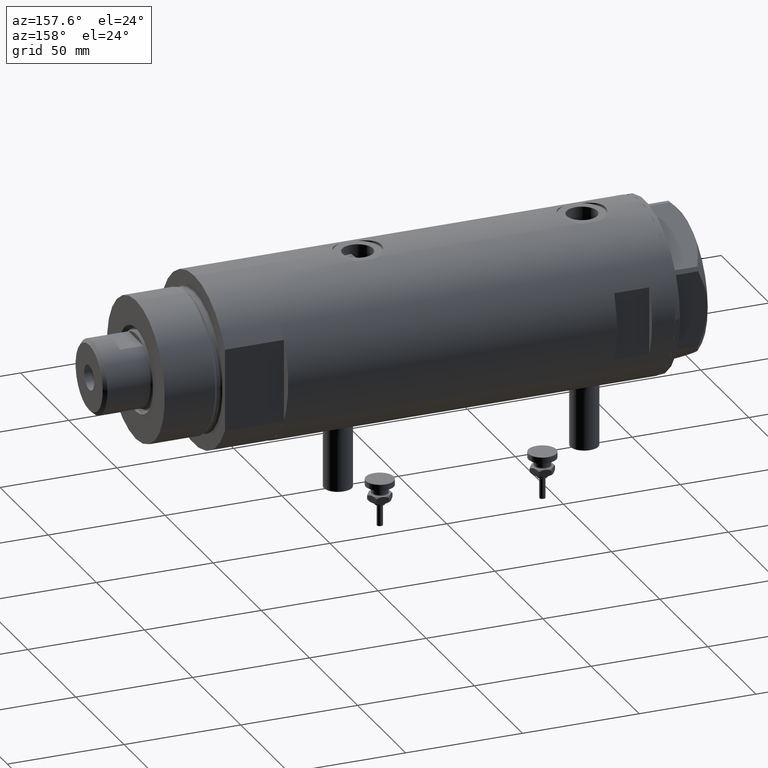
[diagram: clean part render]
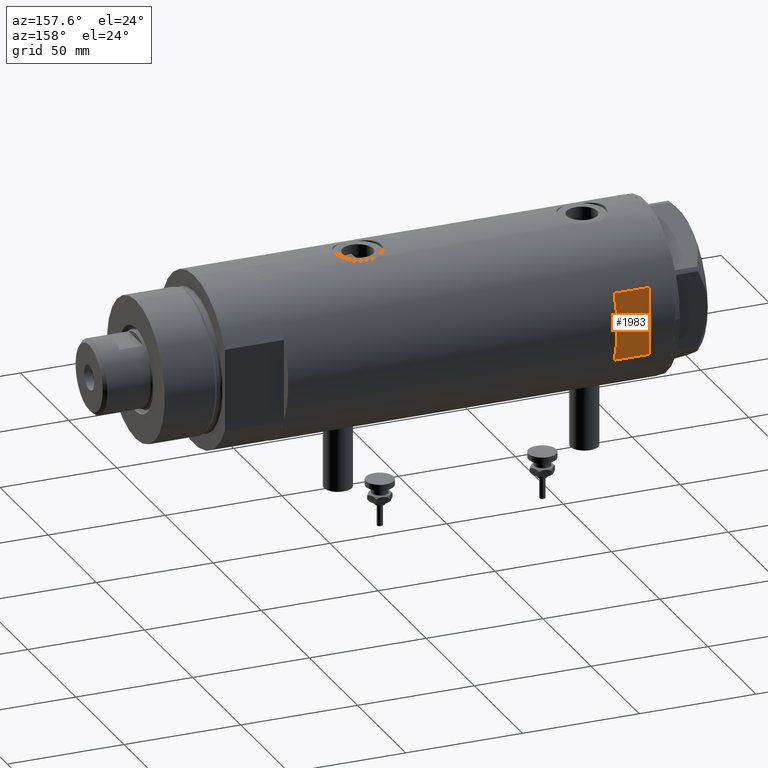
[diagram: same view with one face highlighted and labeled with its STEP entity id]
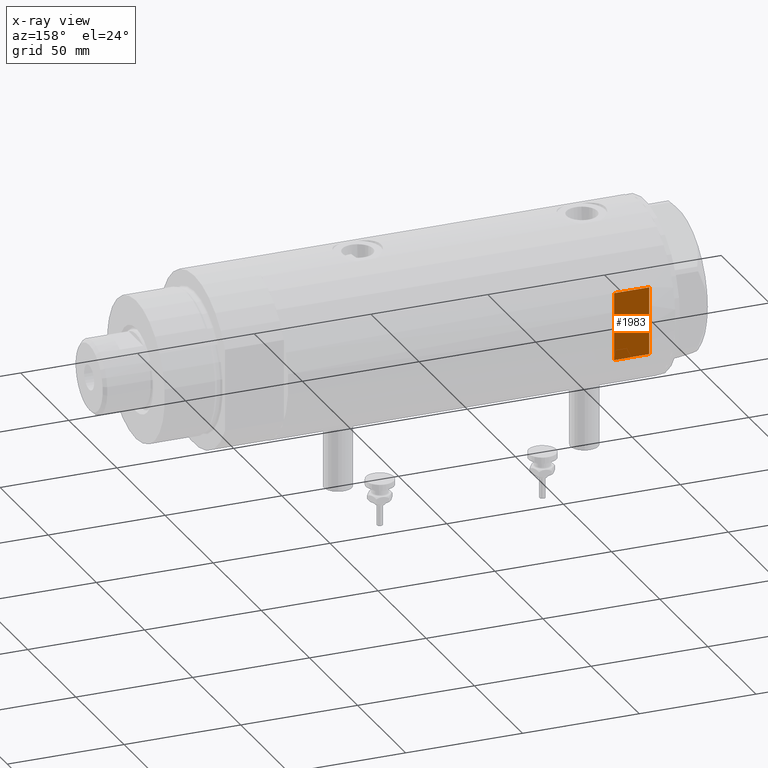
[diagram: x-ray of the same camera — body ghosted, the highlighted face saturated]
A machine part, auxiliary view. The second image highlights one B-rep face of the part: STEP entity #1983.
The next image is the same camera in x-ray: the body ghosted, the highlighted face saturated — about 0% of this face is hidden behind the body in this view.
In plain terms, the highlighted planar face has unit normal (0, -1, -0).
Its self-contained STEP definition (entity closure, byte-faithful):
#270 = DIRECTION ( 'NONE',  ( 0.000000000000000000, -1.000000000000000000, -0.000000000000000000 ) ) ;
#492 = VECTOR ( 'NONE', #2502, 1000.000000000000000 ) ;
#568 = CARTESIAN_POINT ( 'NONE',  ( 14.49137674618942917, 33.50000000000000000, 57.89999999999999147 ) ) ;
#625 = EDGE_CURVE ( 'NONE', #2255, #3529, #2175, .T. ) ;
#1027 = CARTESIAN_POINT ( 'NONE',  ( -14.49137674618942739, 33.50000000000000000, -82.90000000000000568 ) ) ;
#1164 = VECTOR ( 'NONE', #4072, 1000.000000000000000 ) ;
#1264 = DIRECTION ( 'NONE',  ( 1.000000000000000000, -0.000000000000000000, -0.000000000000000000 ) ) ;
#1478 = ORIENTED_EDGE ( 'NONE', *, *, #5230, .T. ) ;
#1715 = AXIS2_PLACEMENT_3D ( 'NONE', #2991, #270, #4313 ) ;
#1754 = CARTESIAN_POINT ( 'NONE',  ( 14.49137674618942739, 33.50000000000000000, -82.90000000000000568 ) ) ;
#1919 = ORIENTED_EDGE ( 'NONE', *, *, #625, .F. ) ;
#1983 = ADVANCED_FACE ( 'NONE', ( #3409 ), #2051, .F. ) ;
#2051 = PLANE ( 'NONE',  #1715 ) ;
#2175 = LINE ( 'NONE', #4027, #3169 ) ;
#2255 = VERTEX_POINT ( 'NONE', #2349 ) ;
#2349 = CARTESIAN_POINT ( 'NONE',  ( -14.49137674618942917, 33.50000000000000000, 57.89999999999999147 ) ) ;
#2502 = DIRECTION ( 'NONE',  ( 0.000000000000000000, 0.000000000000000000, 1.000000000000000000 ) ) ;
#2863 = ORIENTED_EDGE ( 'NONE', *, *, #5402, .T. ) ;
#2864 = ORIENTED_EDGE ( 'NONE', *, *, #4061, .T. ) ;
#2950 = CARTESIAN_POINT ( 'NONE',  ( -36.50000000000000000, 33.50000000000000000, 72.89999999999999147 ) ) ;
#2967 = LINE ( 'NONE', #1027, #492 ) ;
#2991 = CARTESIAN_POINT ( 'NONE',  ( -36.50000000000000000, 33.50000000000000000, 72.89999999999999147 ) ) ;
#3097 = LINE ( 'NONE', #1754, #1164 ) ;
#3169 = VECTOR ( 'NONE', #1264, 1000.000000000000000 ) ;
#3233 = CARTESIAN_POINT ( 'NONE',  ( 14.49137674618942739, 33.50000000000000000, 72.89999999999999147 ) ) ;
#3409 = FACE_OUTER_BOUND ( 'NONE', #5272, .T. ) ;
#3529 = VERTEX_POINT ( 'NONE', #568 ) ;
#4027 = CARTESIAN_POINT ( 'NONE',  ( -36.50000000000000000, 33.50000000000000000, 57.89999999999999147 ) ) ;
#4061 = EDGE_CURVE ( 'NONE', #5052, #5265, #4875, .T. ) ;
#4072 = DIRECTION ( 'NONE',  ( -0.000000000000000000, -0.000000000000000000, -1.000000000000000000 ) ) ;
#4313 = DIRECTION ( 'NONE',  ( 0.000000000000000000, 0.000000000000000000, -1.000000000000000000 ) ) ;
#4875 = LINE ( 'NONE', #2950, #5105 ) ;
#5052 = VERTEX_POINT ( 'NONE', #5314 ) ;
#5105 = VECTOR ( 'NONE', #5787, 1000.000000000000000 ) ;
#5230 = EDGE_CURVE ( 'NONE', #5265, #3529, #3097, .T. ) ;
#5265 = VERTEX_POINT ( 'NONE', #3233 ) ;
#5272 = EDGE_LOOP ( 'NONE', ( #1478, #1919, #2863, #2864 ) ) ;
#5314 = CARTESIAN_POINT ( 'NONE',  ( -14.49137674618942739, 33.50000000000000000, 72.89999999999999147 ) ) ;
#5402 = EDGE_CURVE ( 'NONE', #2255, #5052, #2967, .T. ) ;
#5787 = DIRECTION ( 'NONE',  ( 1.000000000000000000, -0.000000000000000000, -0.000000000000000000 ) ) ;